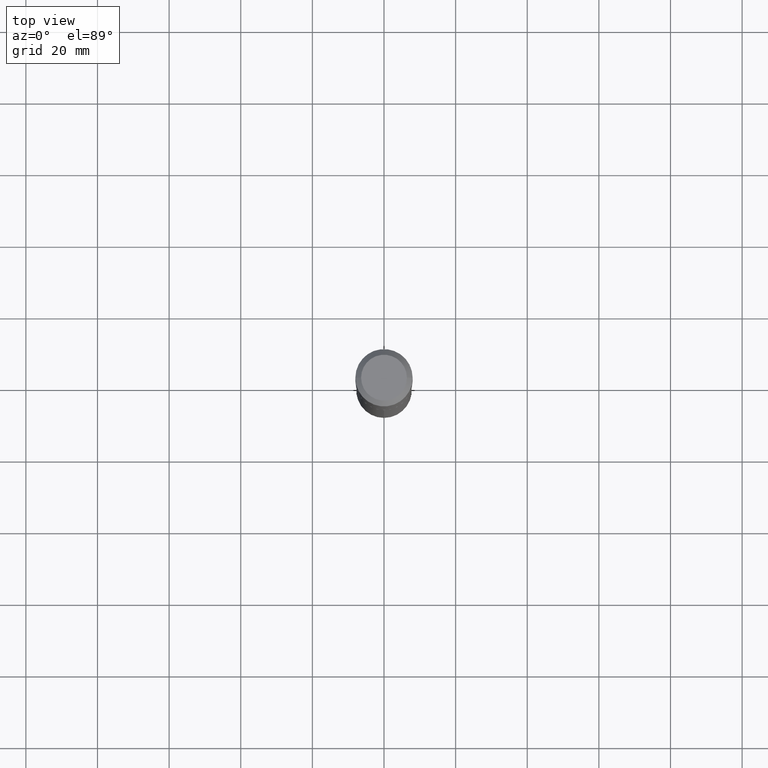
[diagram: clean part render]
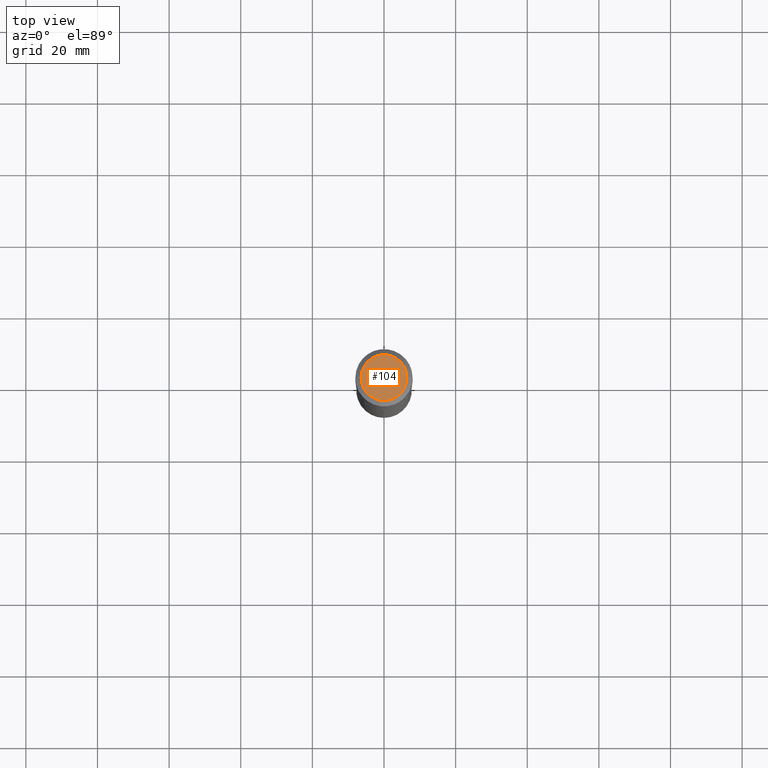
[diagram: same view with one face highlighted and labeled with its STEP entity id]
A machine part, top view. The second image highlights one B-rep face of the part: STEP entity #104.
In plain terms, the highlighted planar face has unit normal (0, -0, -1).
Its self-contained STEP definition (entity closure, byte-faithful):
#27 = CARTESIAN_POINT ( 'NONE',  ( -0.2519600000000000173, 1.869391481036695286E-15, 3.855188123703182704E-18 ) ) ;
#31 = AXIS2_PLACEMENT_3D ( 'NONE', #422, #38, #257 ) ;
#38 = DIRECTION ( 'NONE',  ( -2.445468806185136597E-29, 3.491481338843145583E-15, 1.000000000000000000 ) ) ;
#40 = VERTEX_POINT ( 'NONE', #27 ) ;
#44 = ORIENTED_EDGE ( 'NONE', *, *, #482, .T. ) ;
#104 = ADVANCED_FACE ( 'NONE', ( #168 ), #122, .F. ) ;
#110 = EDGE_LOOP ( 'NONE', ( #44, #458 ) ) ;
#122 = PLANE ( 'NONE',  #193 ) ;
#168 = FACE_OUTER_BOUND ( 'NONE', #110, .T. ) ;
#192 = VERTEX_POINT ( 'NONE', #466 ) ;
#193 = AXIS2_PLACEMENT_3D ( 'NONE', #433, #196, #274 ) ;
#196 = DIRECTION ( 'NONE',  ( 2.438088387897960049E-29, -3.491481338843145188E-15, -1.000000000000000000 ) ) ;
#209 = AXIS2_PLACEMENT_3D ( 'NONE', #418, #339, #215 ) ;
#215 = DIRECTION ( 'NONE',  ( 1.000000000000000000, -6.982962677686266711E-15, 4.876115136096691995E-29 ) ) ;
#237 = CIRCLE ( 'NONE', #31, 0.2519600000000000173 ) ;
#257 = DIRECTION ( 'NONE',  ( 1.000000000000000000, -6.982962677686266711E-15, 4.876115136096691995E-29 ) ) ;
#274 = DIRECTION ( 'NONE',  ( -1.000000000000000000, 6.982962677686265922E-15, -4.876176775795935793E-29 ) ) ;
#301 = CIRCLE ( 'NONE', #209, 0.2519600000000000173 ) ;
#339 = DIRECTION ( 'NONE',  ( -2.445468806185136597E-29, 3.491481338843145583E-15, 1.000000000000000000 ) ) ;
#418 = CARTESIAN_POINT ( 'NONE',  ( -9.427742298522569579E-47, 1.346031739168368629E-32, 3.855188123715871501E-18 ) ) ;
#422 = CARTESIAN_POINT ( 'NONE',  ( -9.427742298522569579E-47, 1.346031739168368629E-32, 3.855188123715871501E-18 ) ) ;
#433 = CARTESIAN_POINT ( 'NONE',  ( -4.713871149261284790E-47, 6.730158695841843144E-33, 1.927594061857935750E-18 ) ) ;
#447 = EDGE_CURVE ( 'NONE', #192, #40, #237, .T. ) ;
#458 = ORIENTED_EDGE ( 'NONE', *, *, #447, .T. ) ;
#466 = CARTESIAN_POINT ( 'NONE',  ( 0.2519600000000000173, -2.054606664725195058E-15, 3.855188123729206640E-18 ) ) ;
#482 = EDGE_CURVE ( 'NONE', #40, #192, #301, .T. ) ;